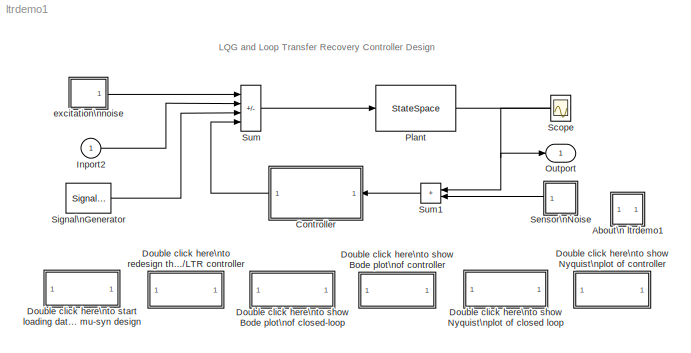
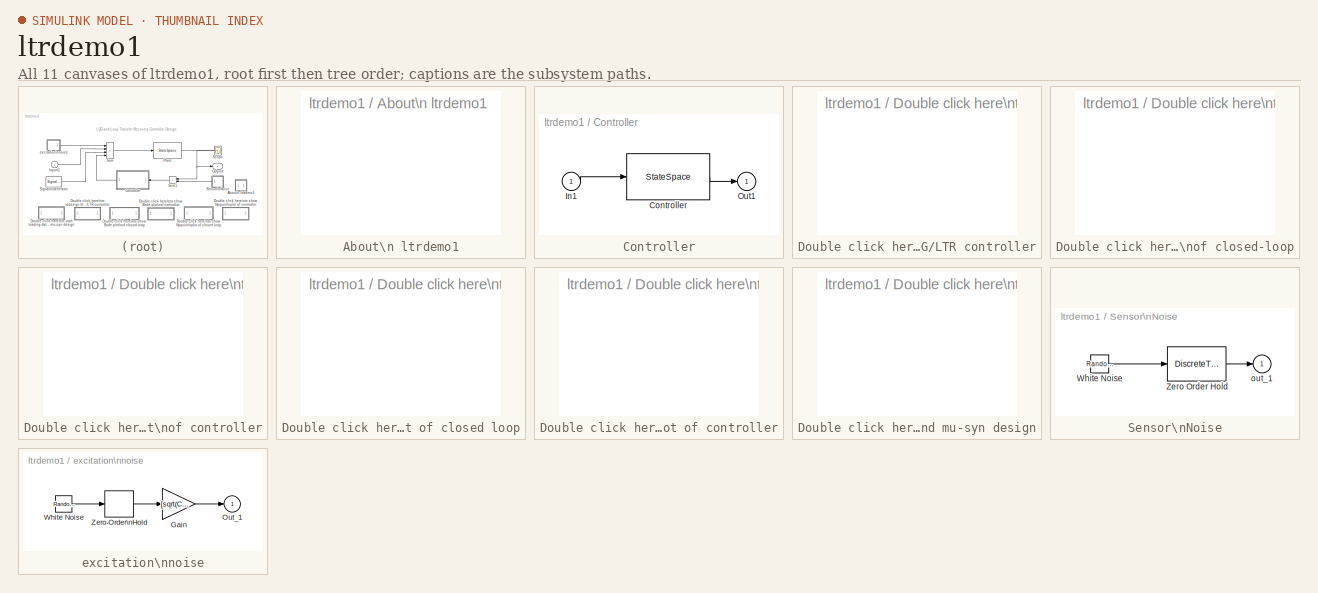
[diagram: thumbnail index - all 11 canvases of the model, root first then tree order]
MODEL ltrdemo1
KIND model
CONFIG AbsTol = 1e-6
CONFIG FixedStep = auto
CONFIG MaxStep = 0.1
CONFIG MinStep = auto
CONFIG PreLoadFcn = ltrdata1
CONFIG RelTol = 1e-3
CONFIG Solver = ode23
CONFIG SolverMode = SingleTasking
CONFIG StartTime = 0.0
CONFIG StopTime = 200
BLOCK [SubSystem] About\n ltrdemo1
  MaskDisplay = disp('?')
  MaskIconFrame = on
  MaskIconOpaque = on
  MaskIconRotate = none
  MaskIconUnits = autoscale
  OpenFcn = clc; more(24); help ltrdata1; more off;
  Ports = []
  RTWFcnNameOpts = Auto
  RTWFileNameOpts = Auto
  RTWSystemCode = Auto
  ShowPortLabels = on
  TreatAsAtomicUnit = off
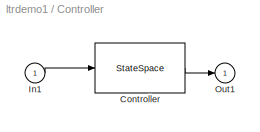
BLOCK [SubSystem] Controller
  MaskCallbackString = |||
  MaskDescription = LTR controller.\n(Requires Control Toolbox and RCT)
  MaskDisplay = disp('LQG/LTR')
  MaskEnableString = on,on,on,on
  MaskHelp = LTR controller design. Mask and unmask this block to see how it works.
  MaskIconFrame = on
  MaskIconOpaque = on
  MaskIconRotate = none
  MaskIconUnits = autoscale
  MaskInitialization = ae=@1; be=@2; ce=@3; de=@4;
  MaskPromptString = Controller Matrix A:|Controller Matrix B:|Controller Matrix C:|Controller Matrix D:
  MaskStyleString = edit,edit,edit,edit
  MaskToolTipString = on,on,on,on
  MaskTunableValueString = on,on,on,on
  MaskValueString = ae|be|ce|de
  MaskVariableAliases = ,,,
  MaskVisibilityString = on,on,on,on
  Ports = [1, 1]
  RTWFcnNameOpts = Auto
  RTWFileNameOpts = Auto
  RTWSystemCode = Auto
  ShowPortLabels = on
  TreatAsAtomicUnit = off
BLOCK [StateSpace] Controller/Controller
  A = ae
  AbsoluteTolerance = auto
  B = be
  C = ce
  D = de
  Realization = auto
  X0 = 0
BLOCK [Inport] Controller/In1
  Interpolate = on
  LatchInput = off
  Port = 1
BLOCK [Outport] Controller/Out1
  InitialOutput = 0
  OutputWhenDisabled = held
  Port = 1
BLOCK [SubSystem] Double click here\nto redesign the\nLQG//LTR controller
  MaskDisplay = disp('Re-design')
  MaskIconFrame = on
  MaskIconOpaque = on
  MaskIconRotate = none
  MaskIconUnits = autoscale
  OpenFcn = if ~exist('ltry'),fprintf('\\nMust be licensed for RCT Toolbox\\n'), else, fprintf('\\nCtrl_C to abort RCT Calculation\\n\\n'); ltrdes1; end
  Ports = []
  RTWFcnNameOpts = Auto
  RTWFileNameOpts = Auto
  RTWSystemCode = Auto
  ShowPortLabels = on
  TreatAsAtomicUnit = off
BLOCK [SubSystem] Double click here\nto show Bode plot\nof closed-loop
  MaskDisplay = disp('Closed-Loop\\nBode Plot')
  MaskIconFrame = on
  MaskIconOpaque = on
  MaskIconRotate = none
  MaskIconUnits = autoscale
  OpenFcn = if ~exist('ae'),fprintf('\\nMust Load Data & Design First\\n'),else [x,y,z,w]=feedback(a,b,c,d,ae,be,ce,de,-1); [x,y,w]=bode(x,y,z,w); clf; subplot(211); loglog(w,x(:,1)); subplot(212); semilogx(w,y(:,1)); subplot(111);end
  Ports = []
  RTWFcnNameOpts = Auto
  RTWFileNameOpts = Auto
  RTWSystemCode = Auto
  ShowPortLabels = on
  TreatAsAtomicUnit = off
BLOCK [SubSystem] Double click here\nto show Bode plot\nof controller
  MaskDisplay = disp('Controller\\nBode Plot')
  MaskIconFrame = on
  MaskIconOpaque = on
  MaskIconRotate = none
  MaskIconUnits = autoscale
  OpenFcn = if ~exist('ae'),fprintf('\\nMust Load Data & Design First\\n'),else  [x,y,w]=bode(ae,be,ce,de); clf; subplot(211); loglog(w,x(:,1)); subplot(212); semilogx(w,y(:,1)); subplot(111);end
  Ports = []
  RTWFcnNameOpts = Auto
  RTWFileNameOpts = Auto
  RTWSystemCode = Auto
  ShowPortLabels = on
  TreatAsAtomicUnit = off
BLOCK [SubSystem] Double click here\nto show Nyquist\nplot of closed loop
  MaskDisplay = disp('Closed-Loop\\nNyquist')
  MaskIconFrame = on
  MaskIconOpaque = on
  MaskIconRotate = none
  MaskIconUnits = autoscale
  OpenFcn = if ~exist('ae'), fprintf('\\nMust Load Data & Desgin First\\n'), else,[x,y,z,w]=feedback(a,b,c,d,ae,be,ce,de,-1); clf, nyquist(x,y,z,w); end
  Ports = []
  RTWFcnNameOpts = Auto
  RTWFileNameOpts = Auto
  RTWSystemCode = Auto
  ShowPortLabels = on
  TreatAsAtomicUnit = off
BLOCK [SubSystem] Double click here\nto show Nyquist\nplot of controller
  MaskDisplay = disp('Controller\\nNyquist')
  MaskIconFrame = on
  MaskIconOpaque = on
  MaskIconRotate = none
  MaskIconUnits = autoscale
  OpenFcn = if ~exist('ae'), fprintf('\\nMust Load Data & Desgin First\\n'), else,clf; nyquist(ae,be,ce,de), end
  Ports = []
  RTWFcnNameOpts = Auto
  RTWFileNameOpts = Auto
  RTWSystemCode = Auto
  ShowPortLabels = on
  TreatAsAtomicUnit = off
BLOCK [SubSystem] Double click here\nto start loading data\nand mu-syn design
  MaskDisplay = disp('Re-Load\\nData')
  MaskIconFrame = on
  MaskIconOpaque = on
  MaskIconRotate = none
  MaskIconUnits = autoscale
  OpenFcn = if ~exist('ltry'),fprintf('\\nMust be licensed for RCT Toolbox\\n'), else, ltrdata1; end
  Ports = []
  RTWFcnNameOpts = Auto
  RTWFileNameOpts = Auto
  RTWSystemCode = Auto
  ShowPortLabels = on
  TreatAsAtomicUnit = off
BLOCK [Inport] Inport2
  Interpolate = on
  LatchInput = off
  Port = 1
BLOCK [Outport] Outport
  InitialOutput = 0
  OutputWhenDisabled = held
  Port = 1
BLOCK [StateSpace] Plant
  A = a
  AbsoluteTolerance = auto
  B = b
  C = c
  D = d
  Realization = auto
  X0 = 0
BLOCK [Scope] Scope
  DataFormat = Array
  Decimation = 1
  Floating = off
  Grid = on
  LimitDataPoints = on
  MaxDataPoints = 5000
  NumInputPorts = 1
  Ports = [1]
  SampleInput = off
  SampleTime = 0
  SaveName = ScopeData
  SaveToWorkspace = off
  TickLabels = on
  TimeRange = 10.000000
  YMax = 5
  YMin = -5
  ZoomMode = on
BLOCK [SubSystem] Sensor\nNoise
  MaskCallbackString = ||
  MaskDescription = White noise for continuous (s-domain) systems.\nBand-limited using zero-order-hold.
  MaskDisplay = plot(1:20,rand(1,20))
  MaskEnableString = on,on,on
  MaskHelp = Implemented using white noise into Zero Order Hold block. For faster simulation set sample time to highest value possible but in accordance with the fastest dynamics of system.
  MaskIconFrame = on
  MaskIconOpaque = on
  MaskIconRotate = none
  MaskIconUnits = autoscale
  MaskInitialization = Cov = @1; Ts = @2; seed = @3;
  MaskPromptString = Noise Variance:|Sample Time:|Seed
  MaskStyleString = edit,edit,edit
  MaskToolTipString = on,on,on
  MaskTunableValueString = on,on,on
  MaskValueString = 0.01|0.11|23341
  MaskVariableAliases = ,,
  MaskVisibilityString = on,on,on
  Ports = [0, 1]
  RTWFcnNameOpts = Auto
  RTWFileNameOpts = Auto
  RTWSystemCode = Auto
  ShowPortLabels = on
  TreatAsAtomicUnit = off
BLOCK [RandomNumber] Sensor\nNoise/White Noise
  Mean = 0
  SampleTime = Ts
  Seed = seed
  Variance = 1
  VectorParams1D = on
BLOCK [DiscreteTransferFcn] Sensor\nNoise/Zero Order Hold
  Denominator = [sqrt(Ts)]
  Numerator = [sqrt(Cov)]
  RTWStateStorageClass = Auto
  Realization = auto
  SampleTime = Ts
BLOCK [Outport] Sensor\nNoise/out_1
  InitialOutput = 0
  OutputWhenDisabled = held
  Port = 1
BLOCK [SignalGenerator] Signal\nGenerator
  Amplitude = 1
  Frequency = 1
  Units = Hertz
  VectorParams1D = on
  WaveForm = sine
BLOCK [Sum] Sum
  IconShape = rectangular
  Inputs = +++-
  Ports = [4, 1]
  SaturateOnIntegerOverflow = on
BLOCK [Sum] Sum1
  IconShape = rectangular
  Inputs = ++
  MaskIconFrame = on
  MaskIconOpaque = on
  MaskIconRotate = none
  MaskIconUnits = autoscale
  Ports = [2, 1]
  SaturateOnIntegerOverflow = on
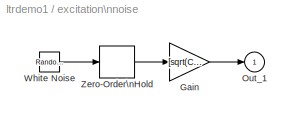
BLOCK [SubSystem] excitation\nnoise
  MaskCallbackString = ||
  MaskDescription = White noise for continuous (s-domain) systems.\nBand-limited using zero-order-hold.
  MaskDisplay = plot(t(:),r2(:))
  MaskEnableString = on,on,on
  MaskHelp = Implemented using white noise into Zero-Order Hold block. The seed and power can be vectors of the same length to produce a vector of white noise sources. For faster simulation, set sample time to the highest value possible but in accordance with the fastest dynamics of system.
  MaskIconFrame = on
  MaskIconOpaque = on
  MaskIconRotate = none
  MaskIconUnits = autoscale
  MaskInitialization = Cov = @1; Ts = @2; seed = @3; r = rand(1,12); r2 = [r(1),r;r,r(12)]; t =[1:13;1:13];
  MaskPromptString = Noise Power:|Sample Time:|Seed
  MaskStyleString = edit,edit,edit
  MaskToolTipString = on,on,on
  MaskTunableValueString = on,on,on
  MaskValueString = 0.1|1|68932234
  MaskVariableAliases = ,,
  MaskVisibilityString = on,on,on
  Ports = [0, 1]
  RTWFcnNameOpts = Auto
  RTWFileNameOpts = Auto
  RTWSystemCode = Auto
  ShowPortLabels = on
  TreatAsAtomicUnit = off
BLOCK [Gain] excitation\nnoise/Gain
  Gain = [sqrt(Cov)]/[sqrt(Ts)]
  Multiplication = Element-wise(K.*u)
  SaturateOnIntegerOverflow = on
BLOCK [Outport] excitation\nnoise/Out_1
  InitialOutput = 0
  OutputWhenDisabled = held
  Port = 1
BLOCK [RandomNumber] excitation\nnoise/White Noise
  Mean = 0
  SampleTime = Ts
  Seed = seed
  Variance = 1
  VectorParams1D = on
BLOCK [ZeroOrderHold] excitation\nnoise/Zero-Order\nHold
  SampleTime = Ts
ANNOTATION (root): LQG and Loop Transfer Recovery Controller Design
LINE Controller/Controller:1 -> Controller/Out1:1
LINE Controller/In1:1 -> Controller/Controller:1
LINE Controller:1 -> Sum:4
LINE Inport2:1 -> Sum:2
NET Plant:1 -> Outport:1, Scope:1, Sum1:1
LINE Sensor\nNoise/White Noise:1 -> Sensor\nNoise/Zero Order Hold:1
LINE Sensor\nNoise/Zero Order Hold:1 -> Sensor\nNoise/out_1:1
LINE Sensor\nNoise:1 -> Sum1:2
LINE Signal\nGenerator:1 -> Sum:3
LINE Sum1:1 -> Controller:1
LINE Sum:1 -> Plant:1
LINE excitation\nnoise/Gain:1 -> excitation\nnoise/Out_1:1
LINE excitation\nnoise/White Noise:1 -> excitation\nnoise/Zero-Order\nHold:1
LINE excitation\nnoise/Zero-Order\nHold:1 -> excitation\nnoise/Gain:1
LINE excitation\nnoise:1 -> Sum:1
note: NET lines group one-source signal fan-out (src -> all destinations, sorted); 1:1 wires keep LINE
